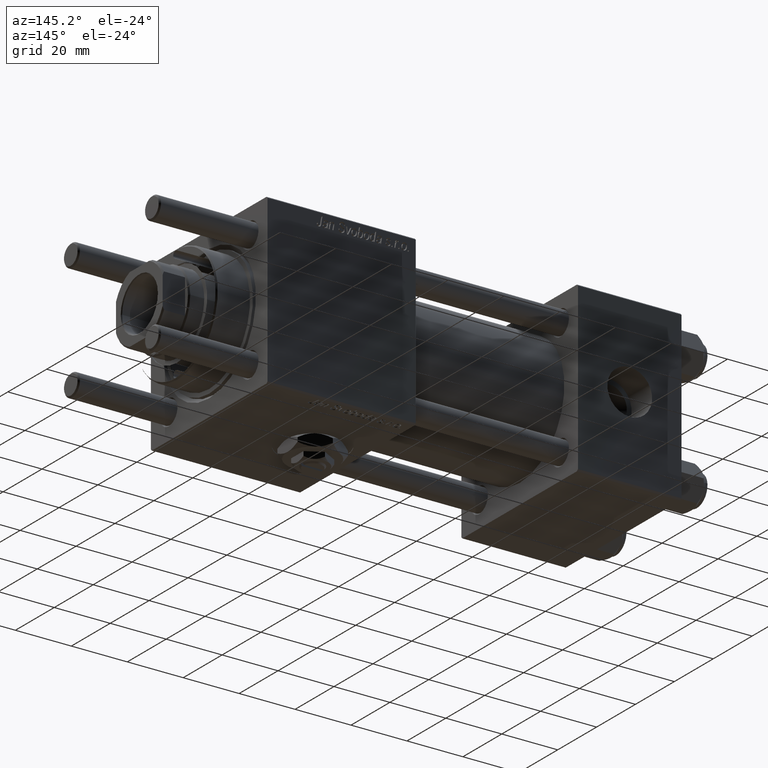
[diagram: clean part render]
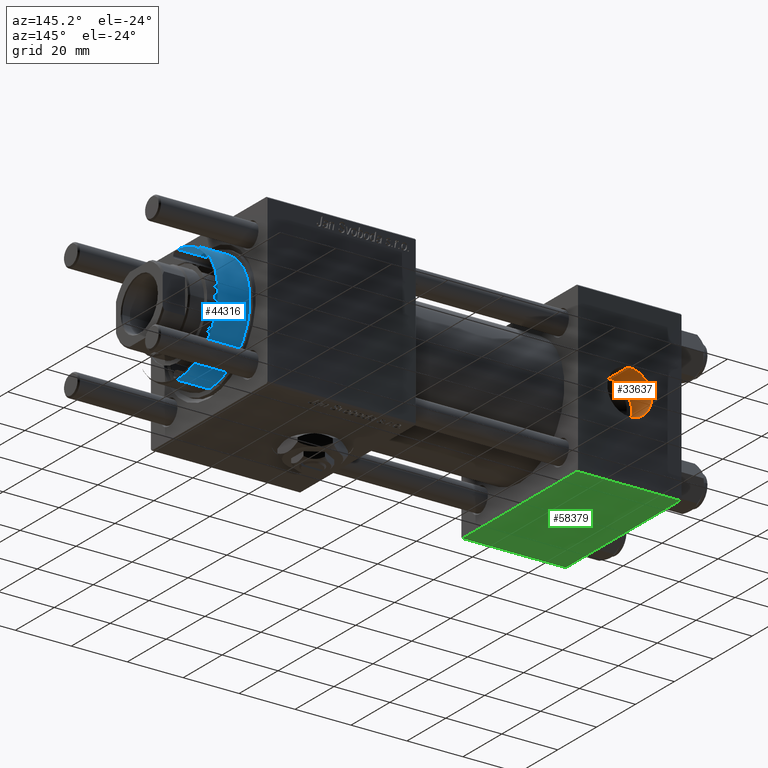
[diagram: same view with three faces highlighted in distinct colors, each labeled with its STEP entity id]
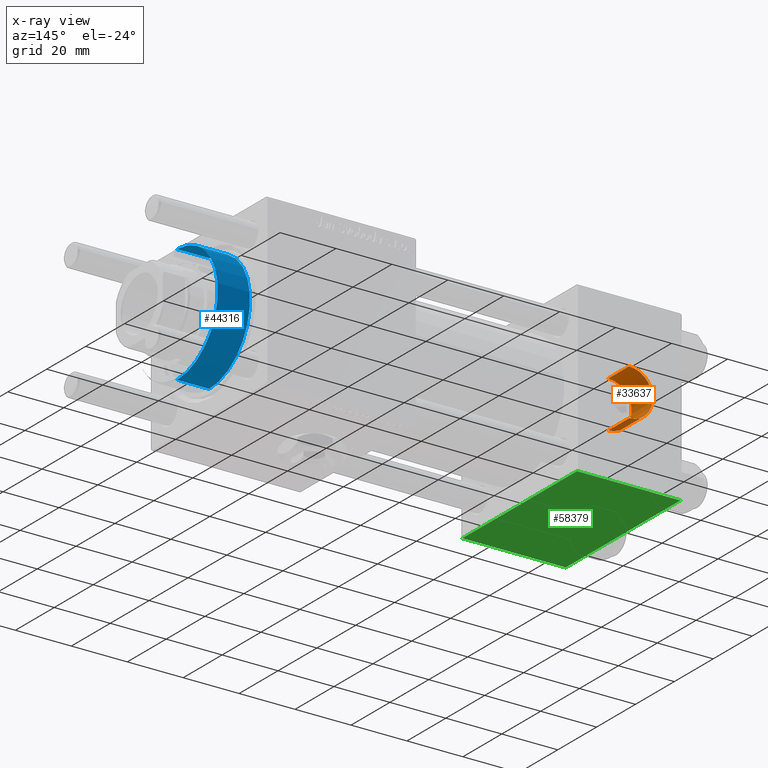
[diagram: x-ray of the same camera — body ghosted, the three highlighted faces saturated]
A machine part, auxiliary view with three faces highlighted in distinct colors.
The next image is the same camera in x-ray (body ghosted, the three faces saturated) — at least one of them is partly hidden behind the body in this view.
Their STEP definitions:

[orange] entity #33637 — the highlighted cylindrical surface (edge-blend (fillet) strip) has radius 8.33 mm, axis along (0, 1, 0).
#3564 = AXIS2_PLACEMENT_3D ( 'NONE', #46171, #23906, #20040 ) ;
#4798 = LINE ( 'NONE', #31821, #21262 ) ;
#4823 = EDGE_CURVE ( 'NONE', #13367, #27378, #33258, .T. ) ;
#4937 = DIRECTION ( 'NONE',  ( 0.000000000000000000, 0.000000000000000000, 1.000000000000000000 ) ) ;
#6601 = AXIS2_PLACEMENT_3D ( 'NONE', #45860, #50604, #28646 ) ;
#11816 = EDGE_CURVE ( 'NONE', #13367, #34752, #23034, .T. ) ;
#12331 = ORIENTED_EDGE ( 'NONE', *, *, #19898, .F. ) ;
#13367 = VERTEX_POINT ( 'NONE', #53701 ) ;
#15747 = CARTESIAN_POINT ( 'NONE',  ( 18.50000000000000000, 29.79999999999999361, 8.330000000000001847 ) ) ;
#16927 = DIRECTION ( 'NONE',  ( 0.000000000000000000, 1.000000000000000000, 0.000000000000000000 ) ) ;
#19898 = EDGE_CURVE ( 'NONE', #27378, #19996, #4798, .T. ) ;
#19996 = VERTEX_POINT ( 'NONE', #15747 ) ;
#20040 = DIRECTION ( 'NONE',  ( 0.000000000000000000, 0.000000000000000000, 1.000000000000000000 ) ) ;
#21262 = VECTOR ( 'NONE', #32990, 1000.000000000000000 ) ;
#23034 = LINE ( 'NONE', #41433, #43698 ) ;
#23906 = DIRECTION ( 'NONE',  ( -0.000000000000000000, 1.000000000000000000, -0.000000000000000000 ) ) ;
#24749 = EDGE_LOOP ( 'NONE', ( #43054, #35966, #45002, #12331 ) ) ;
#27378 = VERTEX_POINT ( 'NONE', #49892 ) ;
#28646 = DIRECTION ( 'NONE',  ( 0.000000000000000000, 0.000000000000000000, 1.000000000000000000 ) ) ;
#31821 = CARTESIAN_POINT ( 'NONE',  ( 18.50000000000000000, 18.99999999999999289, 8.330000000000001847 ) ) ;
#32818 = FACE_OUTER_BOUND ( 'NONE', #24749, .T. ) ;
#32990 = DIRECTION ( 'NONE',  ( -0.000000000000000000, 1.000000000000000000, -0.000000000000000000 ) ) ;
#33258 = CIRCLE ( 'NONE', #45579, 8.330000000000001847 ) ;
#33637 = ADVANCED_FACE ( 'NONE', ( #32818 ), #41436, .F. ) ;
#34752 = VERTEX_POINT ( 'NONE', #40114 ) ;
#35966 = ORIENTED_EDGE ( 'NONE', *, *, #11816, .T. ) ;
#40114 = CARTESIAN_POINT ( 'NONE',  ( 18.50000000000000000, 29.79999999999999361, -8.330000000000001847 ) ) ;
#41433 = CARTESIAN_POINT ( 'NONE',  ( 18.50000000000000000, 18.99999999999999289, -8.330000000000001847 ) ) ;
#41436 = CYLINDRICAL_SURFACE ( 'NONE', #3564, 8.330000000000001847 ) ;
#41707 = CIRCLE ( 'NONE', #6601, 8.330000000000001847 ) ;
#43054 = ORIENTED_EDGE ( 'NONE', *, *, #4823, .F. ) ;
#43698 = VECTOR ( 'NONE', #50622, 1000.000000000000000 ) ;
#45002 = ORIENTED_EDGE ( 'NONE', *, *, #57499, .T. ) ;
#45579 = AXIS2_PLACEMENT_3D ( 'NONE', #50062, #16927, #4937 ) ;
#45860 = CARTESIAN_POINT ( 'NONE',  ( 18.50000000000000000, 29.79999999999999361, 0.000000000000000000 ) ) ;
#46171 = CARTESIAN_POINT ( 'NONE',  ( 18.50000000000000000, 18.99999999999999289, 0.000000000000000000 ) ) ;
#49892 = CARTESIAN_POINT ( 'NONE',  ( 18.50000000000000000, 18.99999999999999289, 8.330000000000001847 ) ) ;
#50062 = CARTESIAN_POINT ( 'NONE',  ( 18.50000000000000000, 18.99999999999999289, 0.000000000000000000 ) ) ;
#50604 = DIRECTION ( 'NONE',  ( 0.000000000000000000, 1.000000000000000000, 0.000000000000000000 ) ) ;
#50622 = DIRECTION ( 'NONE',  ( -0.000000000000000000, 1.000000000000000000, -0.000000000000000000 ) ) ;
#53701 = CARTESIAN_POINT ( 'NONE',  ( 18.50000000000000000, 18.99999999999999289, -8.330000000000001847 ) ) ;
#57499 = EDGE_CURVE ( 'NONE', #34752, #19996, #41707, .T. ) ;

[blue] entity #44316 — the highlighted cylindrical surface (partial cylindrical patch) has radius 21 mm, axis along (-1, -0, 0).
#2693 = DIRECTION ( 'NONE',  ( -0.000000000000000000, -0.000000000000000000, -1.000000000000000000 ) ) ;
#9038 = VERTEX_POINT ( 'NONE', #58144 ) ;
#14721 = CIRCLE ( 'NONE', #47880, 21.00000000000000000 ) ;
#15864 = CIRCLE ( 'NONE', #23457, 21.00000000000000000 ) ;
#16484 = ORIENTED_EDGE ( 'NONE', *, *, #28225, .T. ) ;
#17071 = EDGE_LOOP ( 'NONE', ( #16484, #22471, #46464, #25489 ) ) ;
#17538 = CARTESIAN_POINT ( 'NONE',  ( -21.00000000000000000, 0.000000000000000000, 40.19999999999998863 ) ) ;
#21419 = VECTOR ( 'NONE', #2693, 1000.000000000000000 ) ;
#22471 = ORIENTED_EDGE ( 'NONE', *, *, #49254, .T. ) ;
#23457 = AXIS2_PLACEMENT_3D ( 'NONE', #40066, #49855, #40959 ) ;
#23566 = VERTEX_POINT ( 'NONE', #17538 ) ;
#25489 = ORIENTED_EDGE ( 'NONE', *, *, #29757, .F. ) ;
#25620 = FACE_OUTER_BOUND ( 'NONE', #17071, .T. ) ;
#28225 = EDGE_CURVE ( 'NONE', #23566, #48024, #14721, .T. ) ;
#29722 = CARTESIAN_POINT ( 'NONE',  ( -21.00000000000000000, 0.000000000000000000, 40.70000000000000284 ) ) ;
#29757 = EDGE_CURVE ( 'NONE', #23566, #57002, #35333, .T. ) ;
#33866 = CARTESIAN_POINT ( 'NONE',  ( 21.00000000000000000, 2.571758278209441661E-15, 40.70000000000000284 ) ) ;
#33935 = CARTESIAN_POINT ( 'NONE',  ( 0.000000000000000000, 0.000000000000000000, 40.70000000000000284 ) ) ;
#34802 = CYLINDRICAL_SURFACE ( 'NONE', #47087, 21.00000000000000000 ) ;
#35333 = LINE ( 'NONE', #29722, #21419 ) ;
#38005 = LINE ( 'NONE', #33866, #45355 ) ;
#40066 = CARTESIAN_POINT ( 'NONE',  ( 0.000000000000000000, 0.000000000000000000, 28.69999999999999929 ) ) ;
#40507 = CARTESIAN_POINT ( 'NONE',  ( 0.000000000000000000, 0.000000000000000000, 40.19999999999998863 ) ) ;
#40959 = DIRECTION ( 'NONE',  ( 1.000000000000000000, 0.000000000000000000, 0.000000000000000000 ) ) ;
#41380 = CARTESIAN_POINT ( 'NONE',  ( -21.00000000000000000, 0.000000000000000000, 28.69999999999999929 ) ) ;
#43049 = DIRECTION ( 'NONE',  ( -0.000000000000000000, -0.000000000000000000, -1.000000000000000000 ) ) ;
#43412 = DIRECTION ( 'NONE',  ( -1.000000000000000000, 0.000000000000000000, 0.000000000000000000 ) ) ;
#43662 = CARTESIAN_POINT ( 'NONE',  ( 21.00000000000000000, 2.571758278209441661E-15, 40.19999999999998863 ) ) ;
#44316 = ADVANCED_FACE ( 'NONE', ( #25620 ), #34802, .T. ) ;
#45355 = VECTOR ( 'NONE', #43049, 1000.000000000000000 ) ;
#45548 = DIRECTION ( 'NONE',  ( 0.000000000000000000, 0.000000000000000000, -1.000000000000000000 ) ) ;
#45838 = EDGE_CURVE ( 'NONE', #9038, #57002, #15864, .T. ) ;
#46464 = ORIENTED_EDGE ( 'NONE', *, *, #45838, .T. ) ;
#47087 = AXIS2_PLACEMENT_3D ( 'NONE', #33935, #53209, #43412 ) ;
#47880 = AXIS2_PLACEMENT_3D ( 'NONE', #40507, #45548, #50584 ) ;
#48024 = VERTEX_POINT ( 'NONE', #43662 ) ;
#49254 = EDGE_CURVE ( 'NONE', #48024, #9038, #38005, .T. ) ;
#49855 = DIRECTION ( 'NONE',  ( 0.000000000000000000, 0.000000000000000000, 1.000000000000000000 ) ) ;
#50584 = DIRECTION ( 'NONE',  ( 1.000000000000000000, 0.000000000000000000, 0.000000000000000000 ) ) ;
#53209 = DIRECTION ( 'NONE',  ( -0.000000000000000000, -0.000000000000000000, -1.000000000000000000 ) ) ;
#57002 = VERTEX_POINT ( 'NONE', #41380 ) ;
#58144 = CARTESIAN_POINT ( 'NONE',  ( 21.00000000000000000, 2.571758278209441661E-15, 28.69999999999999929 ) ) ;

[green] entity #58379 — the highlighted planar face has unit normal (0, 0, -1).
#186 = LINE ( 'NONE', #31088, #29345 ) ;
#2149 = VERTEX_POINT ( 'NONE', #31178 ) ;
#3398 = ORIENTED_EDGE ( 'NONE', *, *, #9278, .T. ) ;
#4320 = FACE_OUTER_BOUND ( 'NONE', #25612, .T. ) ;
#7217 = LINE ( 'NONE', #39856, #41294 ) ;
#7923 = ORIENTED_EDGE ( 'NONE', *, *, #29250, .F. ) ;
#9278 = EDGE_CURVE ( 'NONE', #2149, #50965, #30501, .T. ) ;
#14420 = VERTEX_POINT ( 'NONE', #39872 ) ;
#18285 = CARTESIAN_POINT ( 'NONE',  ( 37.00000000000000000, 29.99999999999999289, -30.00000000000000000 ) ) ;
#19097 = CARTESIAN_POINT ( 'NONE',  ( 0.000000000000000000, -29.50000000000001066, -30.00000000000000711 ) ) ;
#21713 = VECTOR ( 'NONE', #46387, 1000.000000000000000 ) ;
#24764 = CARTESIAN_POINT ( 'NONE',  ( 37.00000000000000000, -29.50000000000000000, -30.00000000000000711 ) ) ;
#25612 = EDGE_LOOP ( 'NONE', ( #7923, #47133, #3398, #55367 ) ) ;
#29250 = EDGE_CURVE ( 'NONE', #14420, #57339, #7217, .T. ) ;
#29345 = VECTOR ( 'NONE', #32249, 1000.000000000000000 ) ;
#30501 = LINE ( 'NONE', #52765, #36076 ) ;
#31088 = CARTESIAN_POINT ( 'NONE',  ( 37.00000000000000000, 29.49999999999997868, -30.00000000000000000 ) ) ;
#31178 = CARTESIAN_POINT ( 'NONE',  ( 37.00000000000000000, 29.49999999999997868, -30.00000000000000000 ) ) ;
#32249 = DIRECTION ( 'NONE',  ( 1.000000000000000000, 0.000000000000000000, 0.000000000000000000 ) ) ;
#32745 = LINE ( 'NONE', #19097, #21713 ) ;
#35213 = PLANE ( 'NONE',  #46486 ) ;
#36076 = VECTOR ( 'NONE', #48601, 1000.000000000000000 ) ;
#39664 = DIRECTION ( 'NONE',  ( 0.000000000000000000, 1.156482317317871725E-16, -1.000000000000000000 ) ) ;
#39856 = CARTESIAN_POINT ( 'NONE',  ( 0.000000000000000000, 29.99999999999999289, -30.00000000000000000 ) ) ;
#39872 = CARTESIAN_POINT ( 'NONE',  ( 0.000000000000000000, 29.49999999999997868, -30.00000000000000000 ) ) ;
#41294 = VECTOR ( 'NONE', #49064, 1000.000000000000000 ) ;
#45364 = CARTESIAN_POINT ( 'NONE',  ( 0.000000000000000000, -29.50000000000000000, -30.00000000000000711 ) ) ;
#46387 = DIRECTION ( 'NONE',  ( -1.000000000000000000, 0.000000000000000000, 0.000000000000000000 ) ) ;
#46486 = AXIS2_PLACEMENT_3D ( 'NONE', #18285, #39664, #57760 ) ;
#47133 = ORIENTED_EDGE ( 'NONE', *, *, #56587, .T. ) ;
#48601 = DIRECTION ( 'NONE',  ( 0.000000000000000000, -1.000000000000000000, -1.156482317317871725E-16 ) ) ;
#49064 = DIRECTION ( 'NONE',  ( 0.000000000000000000, -1.000000000000000000, -1.156482317317871725E-16 ) ) ;
#50965 = VERTEX_POINT ( 'NONE', #24764 ) ;
#52765 = CARTESIAN_POINT ( 'NONE',  ( 37.00000000000000000, 29.99999999999999289, -30.00000000000000000 ) ) ;
#54953 = EDGE_CURVE ( 'NONE', #50965, #57339, #32745, .T. ) ;
#55367 = ORIENTED_EDGE ( 'NONE', *, *, #54953, .T. ) ;
#56587 = EDGE_CURVE ( 'NONE', #14420, #2149, #186, .T. ) ;
#57339 = VERTEX_POINT ( 'NONE', #45364 ) ;
#57760 = DIRECTION ( 'NONE',  ( 0.000000000000000000, 1.000000000000000000, 1.156482317317871725E-16 ) ) ;
#58379 = ADVANCED_FACE ( 'NONE', ( #4320 ), #35213, .T. ) ;